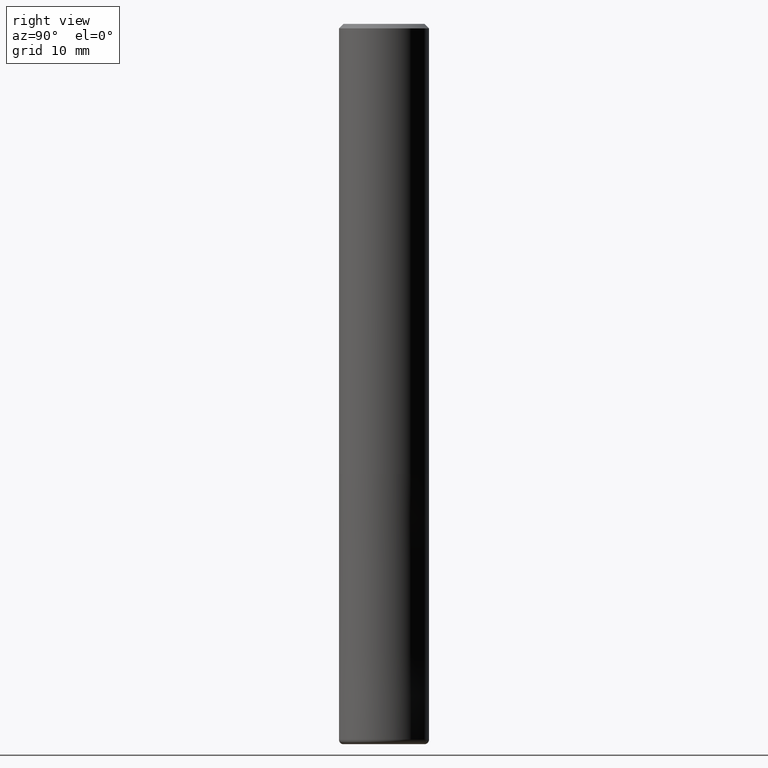
[diagram: clean part render]
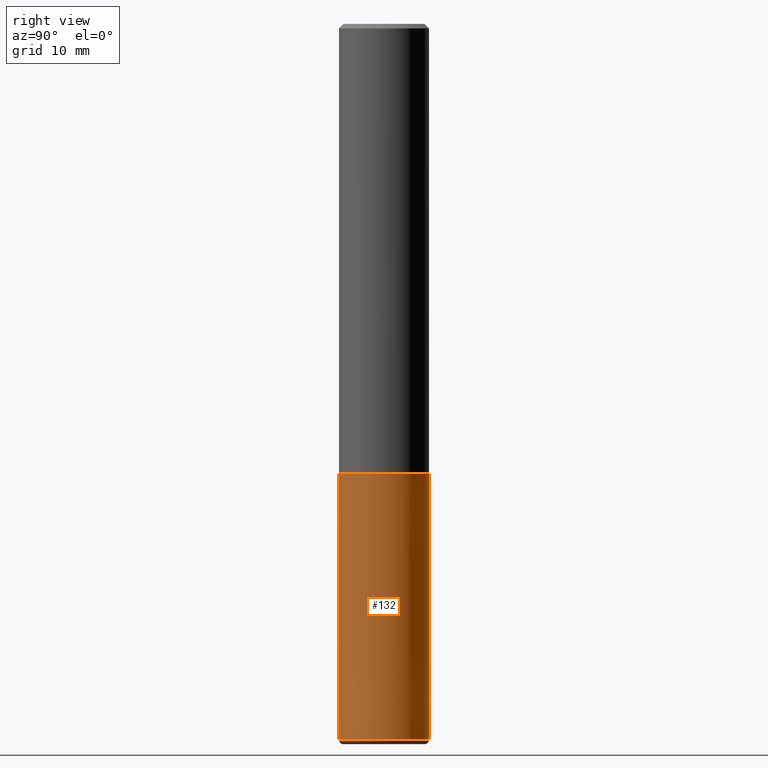
[diagram: same view with one face highlighted and labeled with its STEP entity id]
A machine part, right view. The second image highlights one B-rep face of the part: STEP entity #132.
In plain terms, the highlighted conical surface has half-angle 0 deg.
Its self-contained STEP definition (entity closure, byte-faithful):
#114=VERTEX_POINT('',#277);
#120=EDGE_CURVE('',#182,#114,#283,.T.);
#132=ADVANCED_FACE('',(#297),#298,.T.);
#150=EDGE_CURVE('',#186,#202,#319,.T.);
#182=VERTEX_POINT('',#355);
#186=VERTEX_POINT('',#359);
#202=VERTEX_POINT('',#376);
#208=EDGE_CURVE('',#202,#114,#382,.T.);
#218=EDGE_CURVE('',#182,#186,#394,.T.);
#277=CARTESIAN_POINT('',(6.1229093084765E-016,-4.9999,-50.0));
#283=CIRCLE('',#460,4.9999);
#297=FACE_OUTER_BOUND('',#477,.T.);
#298=CONICAL_SURFACE('',#478,4.99995,3.38983050845369E-006);
#319=CIRCLE('',#503,5.0);
#355=CARTESIAN_POINT('',(0.0,4.9999,-50.0));
#359=CARTESIAN_POINT('',(0.0,5.0,-79.5));
#376=CARTESIAN_POINT('',(6.12303176911189E-016,-5.0,-79.5));
#382=LINE('',#584,#585);
#394=LINE('',#599,#600);
#460=AXIS2_PLACEMENT_3D('',#656,#657,#658);
#477=EDGE_LOOP('',(#680,#681,#682,#683));
#478=AXIS2_PLACEMENT_3D('',#684,#685,#686);
#503=AXIS2_PLACEMENT_3D('',#712,#713,#714);
#584=CARTESIAN_POINT('',(6.12297053879419E-016,-4.99995,-64.75));
#585=VECTOR('',#783,1.0);
#599=CARTESIAN_POINT('',(-6.1229705387942E-016,4.99995,-64.75));
#600=VECTOR('',#801,1.0);
#656=CARTESIAN_POINT('',(0.0,0.0,-50.0));
#657=DIRECTION('',(0.0,0.0,-1.0));
#658=DIRECTION('',(0.0,1.0,0.0));
#680=ORIENTED_EDGE('',*,*,#218,.F.);
#681=ORIENTED_EDGE('',*,*,#120,.T.);
#682=ORIENTED_EDGE('',*,*,#208,.F.);
#683=ORIENTED_EDGE('',*,*,#150,.F.);
#684=CARTESIAN_POINT('',(0.0,0.0,-64.75));
#685=DIRECTION('',(0.0,-0.0,-1.0));
#686=DIRECTION('',(0.0,1.0,0.0));
#712=CARTESIAN_POINT('',(0.0,0.0,-79.5));
#713=DIRECTION('',(0.0,0.0,-1.0));
#714=DIRECTION('',(0.0,1.0,0.0));
#783=DIRECTION('',(-4.15120797902538E-022,3.3898305084472E-006,0.999999999994255));
#801=DIRECTION('',(-4.15120797902538E-022,3.3898305084472E-006,-0.999999999994255));